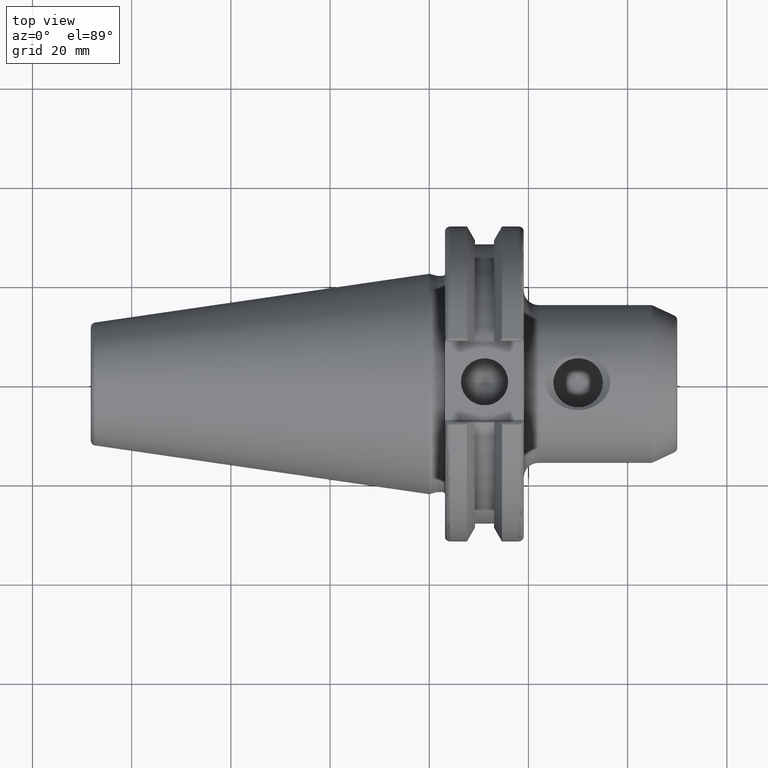
[diagram: clean part render]
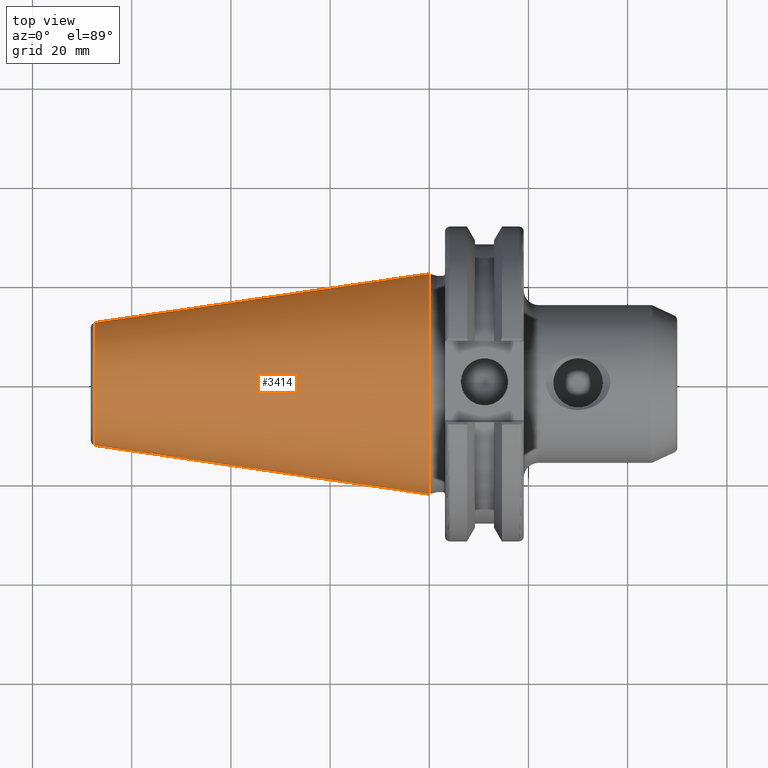
[diagram: same view with one face highlighted and labeled with its STEP entity id]
A machine part, top view. The second image highlights one B-rep face of the part: STEP entity #3414.
In plain terms, the highlighted conical surface has half-angle 8.297 deg.
Its self-contained STEP definition (entity closure, byte-faithful):
#1087=DIRECTION('',(9.895329810633E-1,1.443068930717E-1,0.E0));
#1088=VECTOR('',#1087,6.810718609970E1);
#1089=CARTESIAN_POINT('',(-6.739430689307E1,1.239666357809E1,0.E0));
#1090=LINE('',#1089,#1088);
#1091=CARTESIAN_POINT('',(0.E0,0.E0,0.E0));
#1092=DIRECTION('',(1.E0,0.E0,0.E0));
#1093=DIRECTION('',(0.E0,1.E0,0.E0));
#1094=AXIS2_PLACEMENT_3D('',#1091,#1092,#1093);
#1096=DIRECTION('',(9.895329810633E-1,-1.443068930717E-1,0.E0));
#1097=VECTOR('',#1096,6.810718609970E1);
#1098=CARTESIAN_POINT('',(-6.739430689307E1,-1.239666357809E1,0.E0));
#1099=LINE('',#1098,#1097);
#1105=CARTESIAN_POINT('',(-6.739430689307E1,0.E0,0.E0));
#1106=DIRECTION('',(1.E0,0.E0,0.E0));
#1107=DIRECTION('',(0.E0,0.E0,1.E0));
#1108=AXIS2_PLACEMENT_3D('',#1105,#1106,#1107);
#1115=CARTESIAN_POINT('',(-6.739430689307E1,0.E0,0.E0));
#1116=DIRECTION('',(1.E0,0.E0,0.E0));
#1117=DIRECTION('',(0.E0,1.E0,0.E0));
#1118=AXIS2_PLACEMENT_3D('',#1115,#1116,#1117);
#2258=CARTESIAN_POINT('',(-6.739430689307E1,0.E0,1.239666357809E1));
#2260=VERTEX_POINT('',#2258);
#2261=CARTESIAN_POINT('',(-6.739430689307E1,-1.239666357809E1,0.E0));
#2262=VERTEX_POINT('',#2261);
#2265=CARTESIAN_POINT('',(-6.739430689307E1,1.239666357809E1,0.E0));
#2266=CARTESIAN_POINT('',(-1.421085471520E-13,2.2225E1,0.E0));
#2267=VERTEX_POINT('',#2265);
#2268=VERTEX_POINT('',#2266);
#2269=CARTESIAN_POINT('',(-9.947598300641E-14,-2.2225E1,0.E0));
#2270=VERTEX_POINT('',#2269);
#3400=CARTESIAN_POINT('',(-3.369715344654E1,0.E0,0.E0));
#3401=DIRECTION('',(1.E0,0.E0,0.E0));
#3402=DIRECTION('',(0.E0,1.E0,0.E0));
#3403=AXIS2_PLACEMENT_3D('',#3400,#3401,#3402);
#3404=CONICAL_SURFACE('',#3403,1.731083178905E1,8.297144969837E0);
#3405=ORIENTED_EDGE('',*,*,#3364,.T.);
#3406=ORIENTED_EDGE('',*,*,#3395,.F.);
#3408=ORIENTED_EDGE('',*,*,#3407,.F.);
#3410=ORIENTED_EDGE('',*,*,#3409,.F.);
#3411=ORIENTED_EDGE('',*,*,#3389,.T.);
#3412=EDGE_LOOP('',(#3405,#3406,#3408,#3410,#3411));
#3413=FACE_OUTER_BOUND('',#3412,.F.);
#3414=ADVANCED_FACE('',(#3413),#3404,.T.);
#1095=CIRCLE('',#1094,2.2225E1);
#1109=CIRCLE('',#1108,1.239666357809E1);
#1119=CIRCLE('',#1118,1.239666357809E1);
#3364=EDGE_CURVE('',#2268,#2270,#1095,.T.);
#3389=EDGE_CURVE('',#2267,#2268,#1090,.T.);
#3395=EDGE_CURVE('',#2262,#2270,#1099,.T.);
#3407=EDGE_CURVE('',#2260,#2262,#1109,.T.);
#3409=EDGE_CURVE('',#2267,#2260,#1119,.T.);